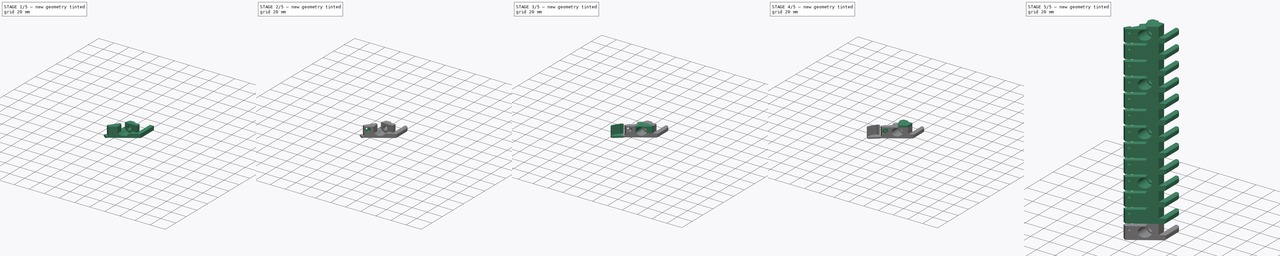
[diagram: build sequence overview — one tinted view per stage of 5, left to right]
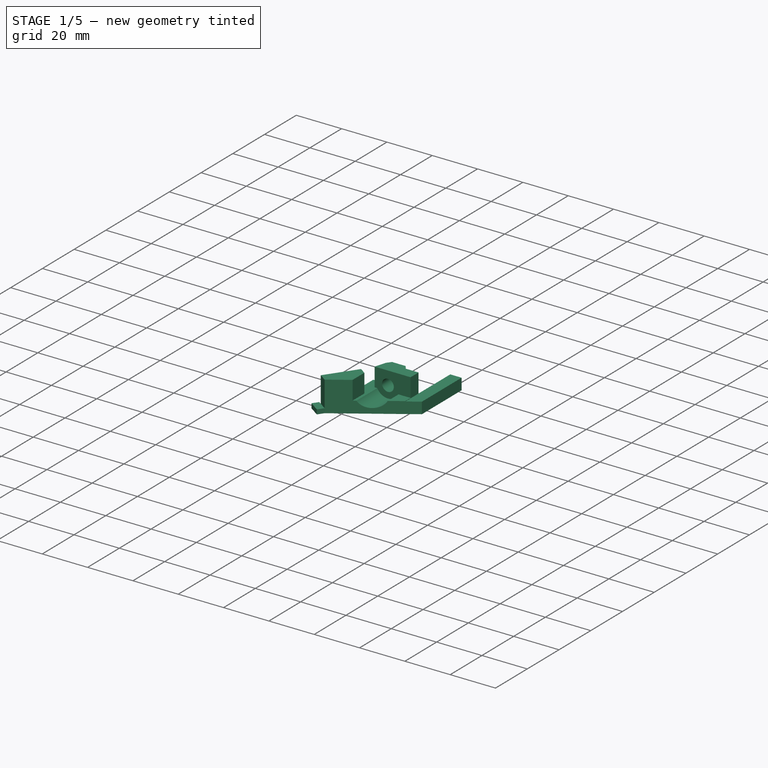
[diagram: stage 1 of 5 — iso view after this stage's code; geometry added in this stage tinted green]
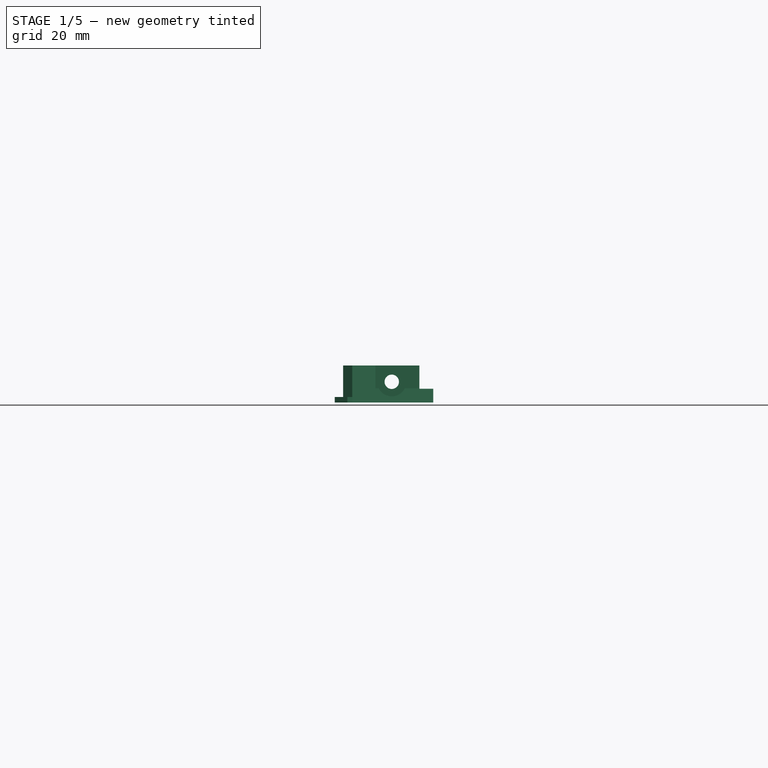
[diagram: stage 1 of 5 — front view after this stage's code; geometry added in this stage tinted green]
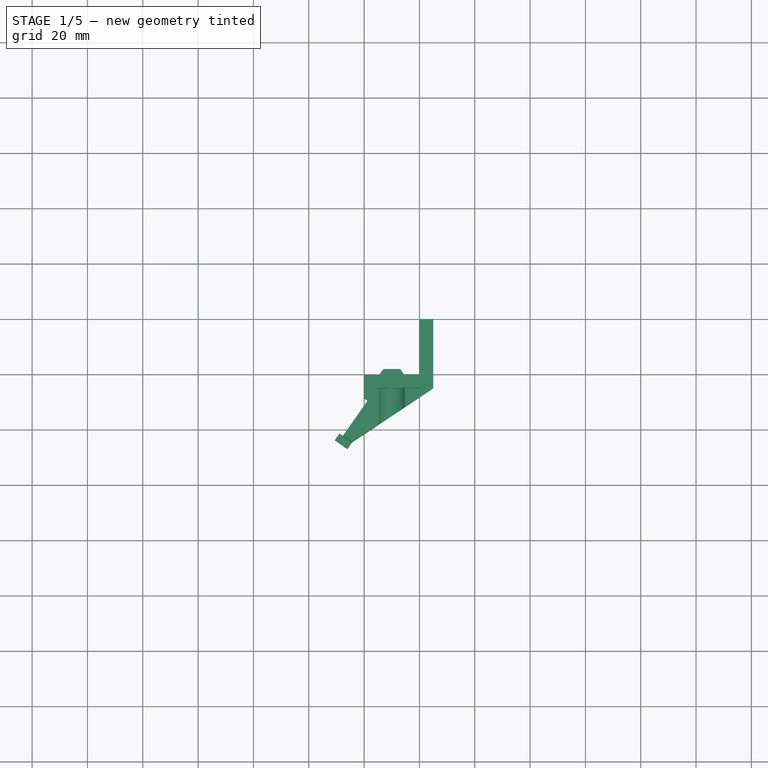
[diagram: stage 1 of 5 — top view after this stage's code; geometry added in this stage tinted green]
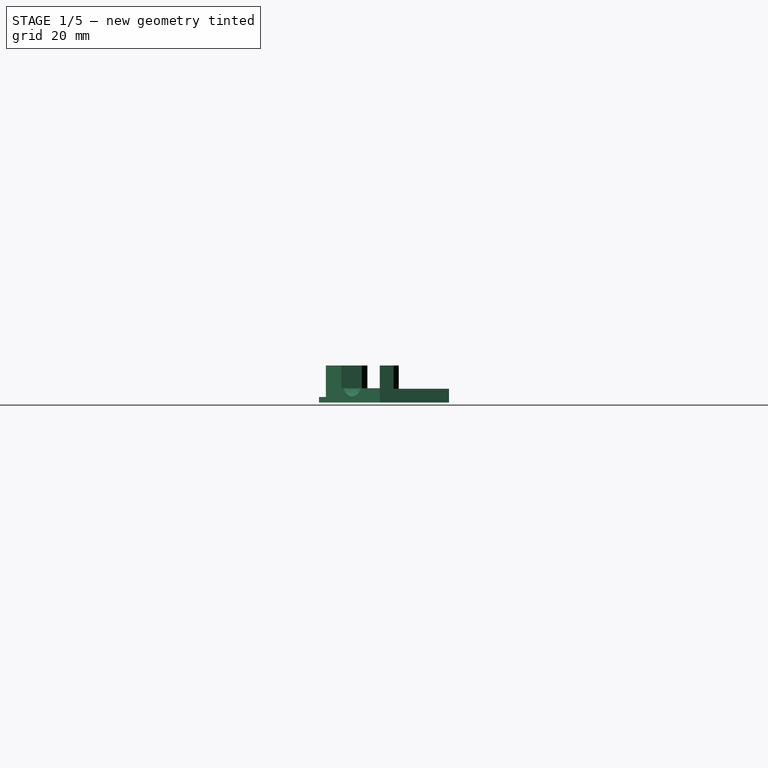
[diagram: stage 1 of 5 — right view after this stage's code; geometry added in this stage tinted green]
FCSTD DOCUMENT  (FreeCAD 0.21R33694 (Git))
Label: blade13
License: All rights reserved
LicenseURL: http://en.wikipedia.org/wiki/All_rights_reserved
objects: Sketcher::SketchObject×21, PartDesign::Pocket×16, PartDesign::Pad×15, PartDesign::Plane×5, PartDesign::Chamfer×5, PartDesign::Fillet×2, PartDesign::LinearPattern×1, PartDesign::Body×1
note: 104 computed .brp shape members not serialized (recipe doc carries the construction recipe); baked Part::Feature solids carry a one-line shape summary decoded from their .brp

FEATURE [Sketcher::SketchObject] Sketch
  FullyConstrained = true
  MapMode = 5
  Support = -> [XY_Plane]
  sketch-geometry (9):
    g0: LineSegment StartX=0 StartY=0 StartZ=0 EndX=0 EndY=20 EndZ=0
    g1: LineSegment StartX=0 StartY=20 StartZ=0 EndX=5 EndY=20 EndZ=0
    g2: LineSegment StartX=5 StartY=20 StartZ=0 EndX=5 EndY=-5 EndZ=0
    g3: LineSegment StartX=-20 StartY=0 StartZ=0 EndX=0 EndY=0 EndZ=0
    g4: LineSegment StartX=-24.3032 StartY=-24.4912 StartZ=0 EndX=5 EndY=-5 EndZ=0
    g5: LineSegment StartX=-18.6894 StartY=-9.5 StartZ=0 EndX=-27.5798 EndY=-22.1969 EndZ=0
    g6: LineSegment StartX=-18.6894 StartY=-9.5 StartZ=0 EndX=-20 EndY=-8.58228 EndZ=0
    g7: LineSegment StartX=-20 StartY=-8.58228 StartZ=0 EndX=-20 EndY=0 EndZ=0
    g8: LineSegment StartX=-27.5798 StartY=-22.1969 StartZ=0 EndX=-24.3032 EndY=-24.4912 EndZ=0
  constraints (26):
    c: Coincident(g-1,g0)
    c: PointOnObject(g0,g-2)
    c: Coincident(g0,g1)
    c: Horizontal(g1)
    c: Coincident(g1,g2)
    c: Vertical(g2)
    c: PointOnObject(g3,g-1)
    c: Coincident(g3,g0)
    c: DistanceY(g0,g0) = 20
    c: DistanceX(g1,g1) = 5
    c: DistanceY(g2,g0) = 5
    c: Coincident(g4,g2)
    c: Angle(g5,g3) = 2.18166
    c: DistanceY(g5,g3) = 9.5
    c: Coincident(g6,g7)
    c: Vertical(g7)
    c: Distance(g6) = 1.6
    c: Perpendicular(g6,g5)
    c: DistanceX(g7,g0) = 20
    c: Coincident(g5,g6)
    c: Coincident(g3,g7)
    c: Coincident(g5,g8)
    c: Perpendicular(g5,g8)
    c: Coincident(g8,g4)
    c: Distance(g8) = 4
    c: Distance(g5) = 15.5
FEATURE [PartDesign::Pad] Pad
  Direction = (1,1,1)
  Length = 13.4
  Length2 = 100
  Profile = -> Sketch
  Type = 0
FEATURE [Sketcher::SketchObject] Sketch002
  FullyConstrained = false
  MapMode = 5
  Placement = pos=(0,0,13.4) rot=(0,0,1;0rad)
  sketch-geometry (5):
    g0: LineSegment StartX=14.3141 StartY=-22.1452 StartZ=0 EndX=14.3141 EndY=26.8282 EndZ=0
    g1: LineSegment StartX=14.3141 StartY=26.8282 StartZ=0 EndX=0 EndY=26.8282 EndZ=0
    g2: LineSegment StartX=0 StartY=26.8282 StartZ=0 EndX=0 EndY=0 EndZ=0
    g3: LineSegment StartX=0 StartY=0 StartZ=0 EndX=0 EndY=-22.1452 EndZ=0
    g4: LineSegment StartX=0 StartY=-22.1452 StartZ=0 EndX=14.3141 EndY=-22.1452 EndZ=0
  constraints (11):
    c: Coincident(g0,g1)
    c: Coincident(g1,g2)
    c: Horizontal(g1)
    c: Vertical(g0)
    c: Vertical(g2)
    c: Coincident(g2,g3)
    c: PointOnObject(g3,g-2)
    c: Vertical(g3)
    c: Coincident(g3,g4)
    c: Coincident(g4,g0)
    c: Horizontal(g4)
FEATURE [PartDesign::Pocket] Pocket001
  BaseFeature = -> Pad
  Direction = (0,0,-1)
  Length = 8.4
  Length2 = 0
  Profile = -> Sketch002
  ReferenceAxis = -> Sketch002 [N_Axis]
  Type = 4
FEATURE [Sketcher::SketchObject] Sketch003
  FullyConstrained = true
  MapMode = 5
  Placement = pos=(0,0,0) rot=(1,0,0;1.5708rad)
  Support = -> [XZ_Plane]
  sketch-geometry (1):
    g0: Circle CenterX=-10 CenterY=7.5 CenterZ=0 NormalX=0 NormalY=0 NormalZ=1 AngleXU=0 Radius=2.6
  constraints (3):
    c: Diameter(g0) = 5.2
    c: DistanceX(g0,g-1) = 10
    c: DistanceY(g-1,g0) = 7.5
FEATURE [PartDesign::Pocket] Pocket002
  BaseFeature = -> Pocket001
  Direction = (0,1,2e-16)
  Length = 5
  Length2 = 100
  Profile = -> Sketch003
  Reversed = true
  Type = 1
FEATURE [PartDesign::Plane] DatumPlane
  AttachmentOffset = pos=(0,0,-30) rot=(0,0,1;0rad)
  Length = 74.5929
  MapMode = 5
  Placement = pos=(0,-30,6.7e-15) rot=(0,0.707107,0.707107;3.14159rad)
  ResizeMode = 0
  Support = -> [Pocket002]
  Width = 252.413
FEATURE [Sketcher::SketchObject] Sketch004
  FullyConstrained = true
  MapMode = 5
  Placement = pos=(0,-30,6.7e-15) rot=(0,0.707107,0.707107;3.14159rad)
  Support = -> [DatumPlane]
  sketch-geometry (1):
    g0: Circle CenterX=10 CenterY=7.5 CenterZ=0 NormalX=0 NormalY=0 NormalZ=1 AngleXU=0 Radius=5.25
  constraints (3):
    c: Diameter(g0) = 10.5
    c: DistanceY(g-1,g0) = 7.5
    c: DistanceX(g-1,g0) = 10
FEATURE [PartDesign::Pocket] Pocket
  BaseFeature = -> Pocket002
  Direction = (0,-1,2e-16)
  Length = 25
  Length2 = 100
  Profile = -> Sketch004
  Reversed = true
  Type = 0
FEATURE [PartDesign::Plane] DatumPlane001
  Length = 96.717
  MapMode = 5
  Placement = pos=(-8.07721,5.65572,0) rot=(-0.345437,0.663579,0.663579;3.8068rad)
  ResizeMode = 0
  Support = -> [Pocket]
  Width = 256.001
FEATURE [Sketcher::SketchObject] Sketch007
  FullyConstrained = true
  MapMode = 5
  Placement = pos=(-8.07721,5.65572,0) rot=(-0.345437,0.663579,0.663579;3.8068rad)
  Support = -> [DatumPlane001]
  sketch-geometry (4):
    g0: LineSegment StartX=37 StartY=0 StartZ=0 EndX=34 EndY=0 EndZ=0
    g1: LineSegment StartX=34 StartY=0 StartZ=0 EndX=34 EndY=2 EndZ=0
    g2: LineSegment StartX=34 StartY=2 StartZ=0 EndX=37 EndY=2 EndZ=0
    g3: LineSegment StartX=37 StartY=2 StartZ=0 EndX=37 EndY=0 EndZ=0
  constraints (12):
    c: Coincident(g0,g1)
    c: Coincident(g1,g2)
    c: Coincident(g2,g3)
    c: Coincident(g3,g0)
    c: Horizontal(g0)
    c: Horizontal(g2)
    c: Vertical(g1)
    c: Vertical(g3)
    c: PointOnObject(g0,g-1)
    c: DistanceX(g2,g2) = 3
    c: DistanceX(g-1,g0) = 37
    c: DistanceY(g1,g1) = 2
FEATURE [PartDesign::Pad] Pad001
  BaseFeature = -> Pocket
  Direction = (-0.819152,0.573576,1e-16)
  Length = 1.6
  Length2 = 4
  Profile = -> Sketch007
  Type = 4
FEATURE [PartDesign::Plane] DatumPlane002
  Length = 62.8345
  MapMode = 5
  Placement = pos=(0,0,13.4) rot=(0,0,1;0rad)
  ResizeMode = 0
  Support = -> [Pad001]
  Width = 60.2547
FEATURE [Sketcher::SketchObject] Sketch008
  FullyConstrained = false
  MapMode = 5
  Placement = pos=(0,0,13.4) rot=(0,0,1;0rad)
  Support = -> [DatumPlane002]
  sketch-geometry (10):
    g0: LineSegment StartX=-15.88 StartY=-5 StartZ=0 EndX=-14.38 EndY=-1e-16 EndZ=0
    g1: LineSegment StartX=-14.38 StartY=-1e-16 StartZ=0 EndX=-20 EndY=0 EndZ=0
    g2: LineSegment StartX=0 StartY=-10 StartZ=0 EndX=0 EndY=-25 EndZ=0
    g3: LineSegment StartX=-20 StartY=0 StartZ=0 EndX=-20 EndY=-8.59 EndZ=0
    g4: LineSegment StartX=-3.69055 StartY=-25 StartZ=0 EndX=0 EndY=-25 EndZ=0
    g5: LineSegment StartX=-15.88 StartY=-5 StartZ=0 EndX=0 EndY=-5 EndZ=0
    g6: LineSegment StartX=0 StartY=-5 StartZ=0 EndX=0 EndY=-10 EndZ=0
    g7: LineSegment StartX=-15.88 StartY=-11.4749 StartZ=0 EndX=-15.88 EndY=-25 EndZ=0
    g8: LineSegment StartX=-3.69055 StartY=-25 StartZ=0 EndX=-15.88 EndY=-25 EndZ=0
    g9: LineSegment StartX=-15.88 StartY=-11.4749 StartZ=0 EndX=-20 EndY=-8.59 EndZ=0
  constraints (29):
    c: PointOnObject(g1,g-1)
    c: PointOnObject(g0,g-1)
    c: Coincident(g0,g1)
    c: DistanceY(g0,g1) = 5
    c: DistanceX(g0,g0) = 1.5
    c: Vertical(g2)
    c: DistanceY(g2,g-1) = 25
    c: PointOnObject(g2,g-2)
    c: DistanceY(g2,g-1) = 10
    c: DistanceX(g0,g-1) = 14.38
    c: Coincident(g1,g3)
    c: Vertical(g3)
    c: Coincident(g4,g2)
    c: Horizontal(g4)
    c: Coincident(g0,g5)
    c: PointOnObject(g5,g-2)
    c: Horizontal(g5)
    c: Coincident(g5,g6)
    c: Coincident(g2,g6)
    c: DistanceX(g1,g-1) = 20
    c: DistanceY(g3,g1) = 8.59
    c: Vertical(g7)
    c: Coincident(g8,g7)
    c: Horizontal(g8)
    c: PointOnObject(g0,g7)
    c: Coincident(g9,g7)
    c: Coincident(g9,g3)
    c: Angle(g9,g3) = 2.18166
    c: Coincident(g8,g4)
FEATURE [PartDesign::Pocket] Pocket005
  BaseFeature = -> Pad001
  Direction = (0,0,-1)
  Length = 8.25
  Length2 = 100
  Profile = -> Sketch008
  Type = 0
FEATURE [Sketcher::SketchObject] Sketch009
  FullyConstrained = true
  MapMode = 5
  Support = -> [XY_Plane]
  sketch-geometry (5):
    g0: LineSegment StartX=-14.375 StartY=0 StartZ=0 EndX=-13 EndY=1.85 EndZ=0
    g1: LineSegment StartX=-13 StartY=1.85 StartZ=0 EndX=-7 EndY=1.85 EndZ=0
    g2: LineSegment StartX=-7 StartY=1.85 StartZ=0 EndX=-5.625 EndY=0 EndZ=0
    g3: LineSegment StartX=-5.625 StartY=0 StartZ=0 EndX=-14.375 EndY=0 EndZ=0
    g4: LineSegment StartX=-10 StartY=1.85 StartZ=0 EndX=-10 EndY=0 EndZ=0
  constraints (14):
    c: PointOnObject(g0,g-1)
    c: Coincident(g0,g1)
    c: Horizontal(g1)
    c: Coincident(g1,g2)
    c: PointOnObject(g2,g-1)
    c: Coincident(g2,g3)
    c: Coincident(g3,g0)
    c: DistanceX(g0,g2) = 8.75
    c: DistanceX(g1,g1) = 6
    c: DistanceY(g-1,g1) = 1.85
    c: Vertical(g4)
    c: Symmetric(g0,g1,g4)
    c: Symmetric(g0,g2,g4)
    c: DistanceX(g4,g-1) = 10
FEATURE [PartDesign::Pad] Pad002
  BaseFeature = -> Pocket005
  Direction = (0,0,1)
  Length = 13.4
  Length2 = 100
  Profile = -> Sketch009
  Type = 0
FEATURE [PartDesign::Pocket] Pocket006
  BaseFeature = -> Pad002
  Direction = (0,1,2e-16)
  Length = 5
  Length2 = 100
  Profile = -> Sketch003
  Type = 0
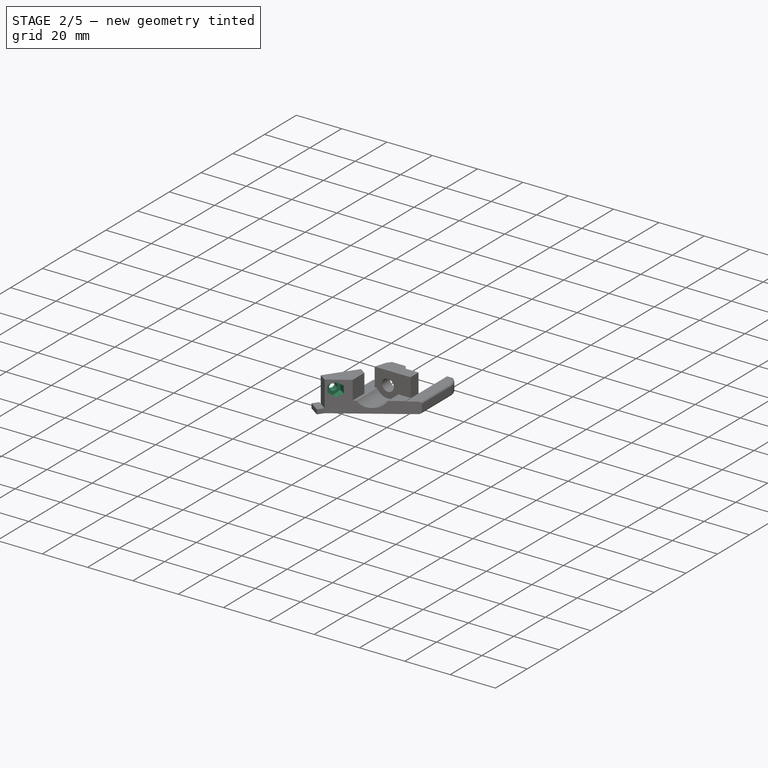
[diagram: stage 2 of 5 — iso view after this stage's code; geometry added in this stage tinted green]
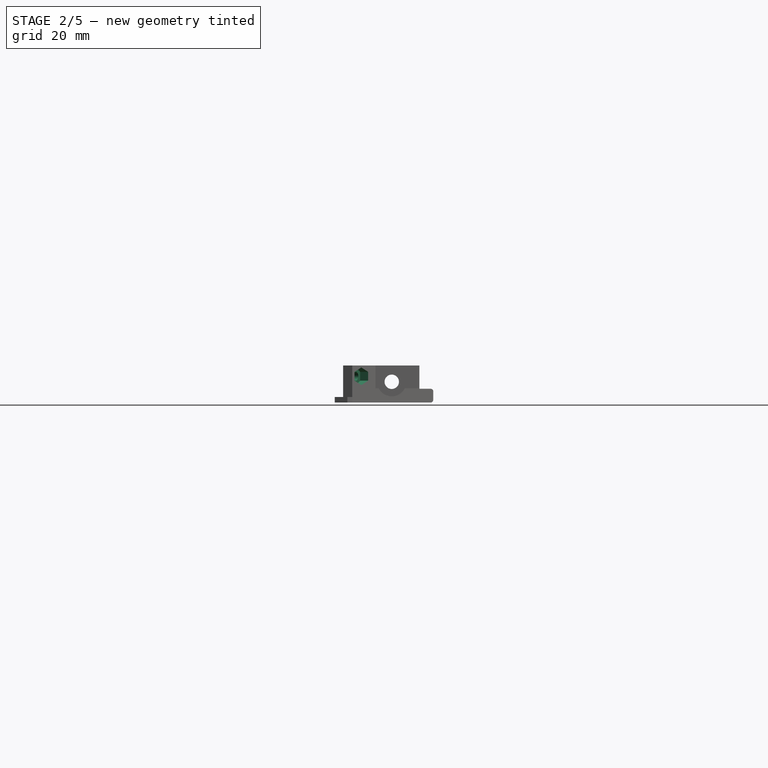
[diagram: stage 2 of 5 — front view after this stage's code; geometry added in this stage tinted green]
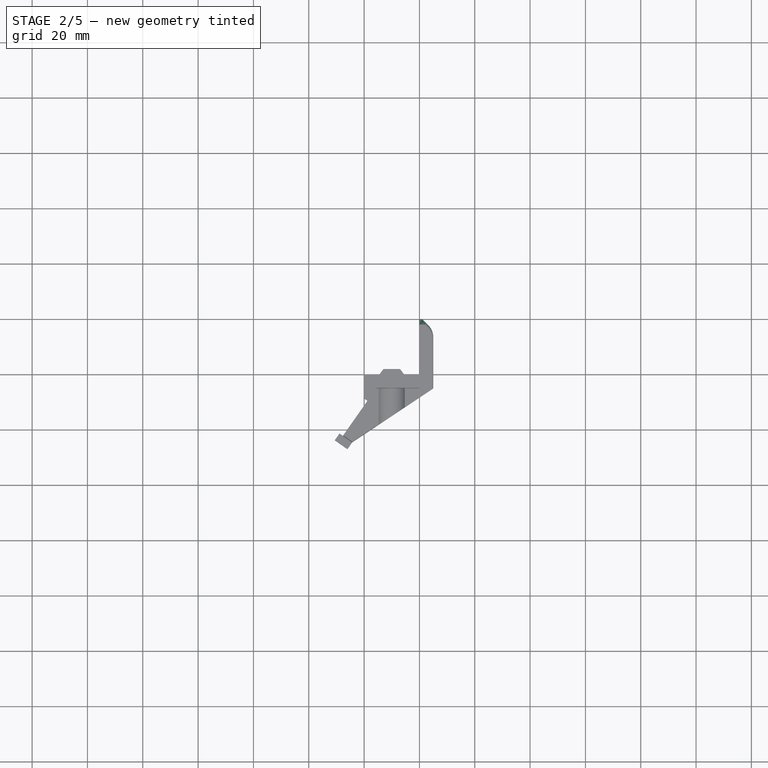
[diagram: stage 2 of 5 — top view after this stage's code; geometry added in this stage tinted green]
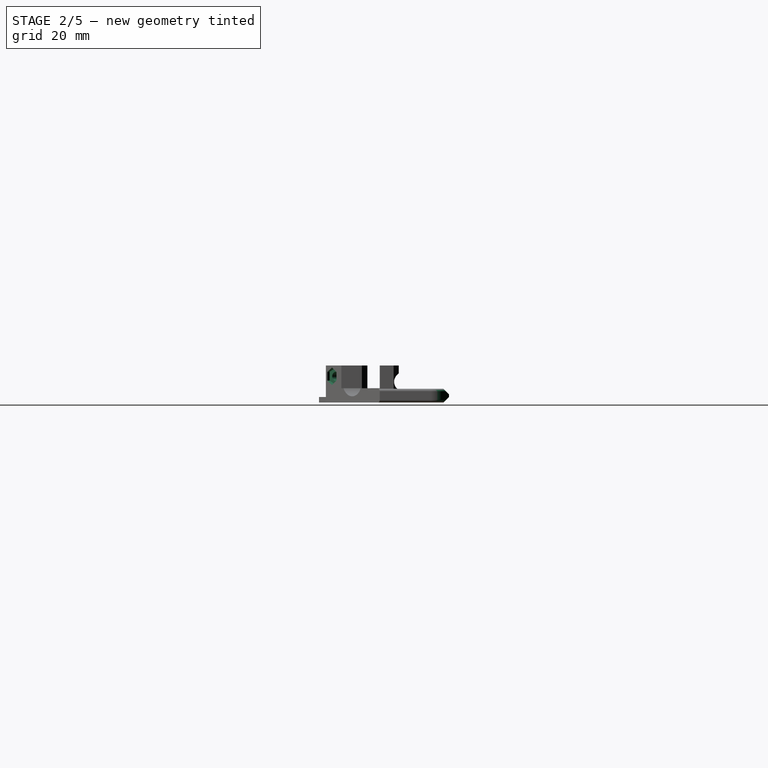
[diagram: stage 2 of 5 — right view after this stage's code; geometry added in this stage tinted green]
FEATURE [Sketcher::SketchObject] Sketch010
  FullyConstrained = true
  MapMode = 5
  Placement = pos=(0,0,0) rot=(1,0,0;1.5708rad)
  Support = -> [XZ_Plane]
  sketch-geometry (1):
    g0: Circle CenterX=-10 CenterY=7.5 CenterZ=0 NormalX=0 NormalY=0 NormalZ=1 AngleXU=0 Radius=4.25
  constraints (3):
    c: DistanceX(g0,g-1) = 10
    c: DistanceY(g-1,g0) = 7.5
    c: Diameter(g0) = 8.5
FEATURE [PartDesign::Pocket] Pocket007
  BaseFeature = -> Pocket006
  Direction = (0,1,2e-16)
  Length = 5
  Length2 = 100
  Profile = -> Sketch010
  Type = 0
FEATURE [PartDesign::Plane] DatumPlane003
  AttachmentOffset = pos=(0,0,-9) rot=(0,0,1;0rad)
  Length = 96.717
  MapMode = 5
  Placement = pos=(-0.704838,0.493533,-1e-15) rot=(-0.345437,0.663579,0.663579;3.8068rad)
  ResizeMode = 0
  Width = 256.001
FEATURE [Sketcher::SketchObject] Sketch011
  FullyConstrained = true
  MapMode = 5
  Placement = pos=(-0.704838,0.493533,-1e-15) rot=(-0.345437,0.663579,0.663579;3.8068rad)
  Support = -> [DatumPlane003]
  sketch-geometry (1):
    g0: Circle CenterX=30.3 CenterY=9.5 CenterZ=0 NormalX=0 NormalY=0 NormalZ=1 AngleXU=0 Radius=1.6
  constraints (3):
    c: Diameter(g0) = 3.2
    c: DistanceY(g-1,g0) = 9.5
    c: DistanceX(g-1,g0) = 30.3
FEATURE [Sketcher::SketchObject] Sketch012
  FullyConstrained = true
  MapMode = 5
  Placement = pos=(-0.704838,0.493533,-1e-15) rot=(-0.345437,0.663579,0.663579;3.8068rad)
  Support = -> [DatumPlane003]
  sketch-geometry (7):
    g0: LineSegment StartX=33.05 StartY=7.91229 StartZ=0 EndX=33.05 EndY=11.0877 EndZ=0
    g1: LineSegment StartX=33.05 StartY=11.0877 StartZ=0 EndX=30.3 EndY=12.6754 EndZ=0
    g2: LineSegment StartX=30.3 StartY=12.6754 StartZ=0 EndX=27.55 EndY=11.0877 EndZ=0
    g3: LineSegment StartX=27.55 StartY=11.0877 StartZ=0 EndX=27.55 EndY=7.91229 EndZ=0
    g4: LineSegment StartX=27.55 StartY=7.91229 StartZ=0 EndX=30.3 EndY=6.32457 EndZ=0
    g5: LineSegment StartX=30.3 StartY=6.32457 StartZ=0 EndX=33.05 EndY=7.91229 EndZ=0
    g6: Circle CenterX=30.3 CenterY=9.5 CenterZ=0 NormalX=0 NormalY=0 NormalZ=1 AngleXU=0 Radius=3.17543
  constraints (17):
    c: Coincident(g0,g1)
    c: Coincident(g1,g2)
    c: Coincident(g2,g3)
    c: Coincident(g3,g4)
    c: Coincident(g4,g5)
    c: Coincident(g5,g0)
    c: Equal(g0, g1-g5) x5
    c: PointOnObject(g0,g6)
    c: PointOnObject(g1,g6)
    c: PointOnObject(g2,g6)
    c: PointOnObject(g3,g6)
    c: PointOnObject(g4,g6)
    c: PointOnObject(g5,g6)
    c: Vertical(g3)
    c: DistanceX(g2,g0) = 5.5
    c: DistanceX(g-1,g6) = 30.3
    c: DistanceY(g-1,g6) = 9.5
FEATURE [PartDesign::Chamfer] Chamfer
  Angle = 45
  Base = -> Pocket007 [Edge43]
  BaseFeature = -> Pocket007
  ChamferType = 0
  FlipDirection = false
  Size = 4
  Size2 = 1
  SupportTransform = false
  UseAllEdges = false
FEATURE [PartDesign::Chamfer] Chamfer001
  Angle = 45
  Base = -> Chamfer [Edge29,Edge4]
  BaseFeature = -> Chamfer
  ChamferType = 0
  FlipDirection = false
  Size = 2
  Size2 = 1
  SupportTransform = false
  UseAllEdges = false
FEATURE [PartDesign::Fillet] Fillet
  Base = -> Chamfer001 [Edge15]
  BaseFeature = -> Chamfer001
  Radius = 6
  SupportTransform = false
  UseAllEdges = false
FEATURE [PartDesign::Pocket] Pocket008
  BaseFeature = -> Fillet
  Direction = (0.819152,-0.573576,-1.3e-15)
  Length = 16
  Length2 = 100
  Profile = -> Sketch011
  Reversed = true
  Type = 0
FEATURE [PartDesign::Pocket] Pocket009
  BaseFeature = -> Pocket008
  Direction = (0.819152,-0.573576,-1.3e-15)
  Length = 6
  Length2 = 100
  Profile = -> Sketch012
  Reversed = true
  Type = 0
FEATURE [PartDesign::Plane] DatumPlane004
  Length = 96.717
  MapMode = 5
  Placement = pos=(-8.07721,5.65572,0) rot=(-0.345437,0.663579,0.663579;3.8068rad)
  ResizeMode = 0
  Support = -> [Pocket009]
  Width = 256.001
FEATURE [Sketcher::SketchObject] Sketch013
  FullyConstrained = true
  MapMode = 5
  Placement = pos=(-8.07721,5.65572,0) rot=(-0.345437,0.663579,0.663579;3.8068rad)
  Support = -> [DatumPlane004]
  sketch-geometry (4):
    g0: LineSegment StartX=19.5 StartY=5 StartZ=0 EndX=27.5 EndY=5 EndZ=0
    g1: LineSegment StartX=27.5 StartY=5 StartZ=0 EndX=27.5 EndY=12 EndZ=0
    g2: LineSegment StartX=27.5 StartY=12 StartZ=0 EndX=19.5 EndY=12 EndZ=0
    g3: LineSegment StartX=19.5 StartY=12 StartZ=0 EndX=19.5 EndY=5 EndZ=0
  constraints (12):
    c: Coincident(g0,g1)
    c: Coincident(g1,g2)
    c: Coincident(g2,g3)
    c: Coincident(g3,g0)
    c: Horizontal(g0)
    c: Horizontal(g2)
    c: Vertical(g1)
    c: Vertical(g3)
    c: DistanceX(g-1,g0) = 19.5
    c: DistanceX(g0,g0) = 8
    c: DistanceY(g-1,g0) = 5
    c: DistanceY(g3,g3) = 7
FEATURE [PartDesign::Pocket] Pocket010
  BaseFeature = -> Pocket009
  Direction = (0.819152,-0.573576,-1e-16)
  Length = 2
  Length2 = 100
  Profile = -> Sketch013
  Type = 0
FEATURE [PartDesign::Fillet] Fillet001
  Base = -> Pocket010 [Edge21,Edge2]
  BaseFeature = -> Pocket010
  Radius = 1
  SupportTransform = false
  UseAllEdges = false
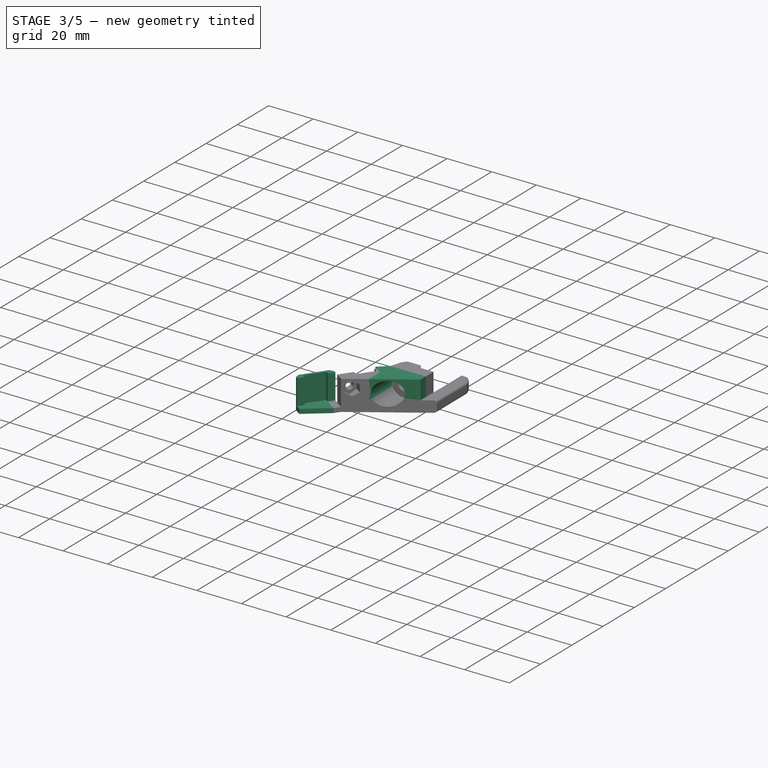
[diagram: stage 3 of 5 — iso view after this stage's code; geometry added in this stage tinted green]
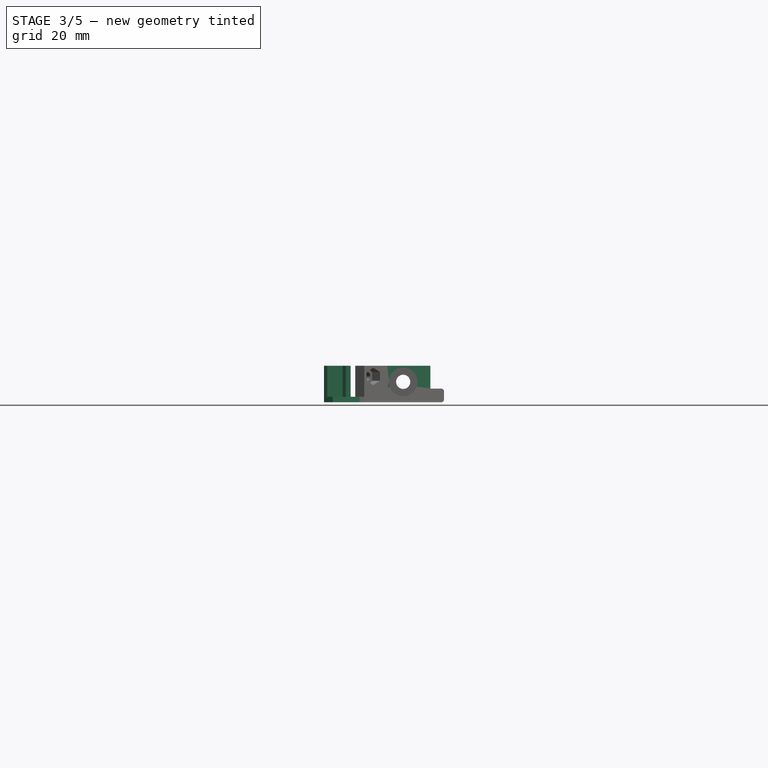
[diagram: stage 3 of 5 — front view after this stage's code; geometry added in this stage tinted green]
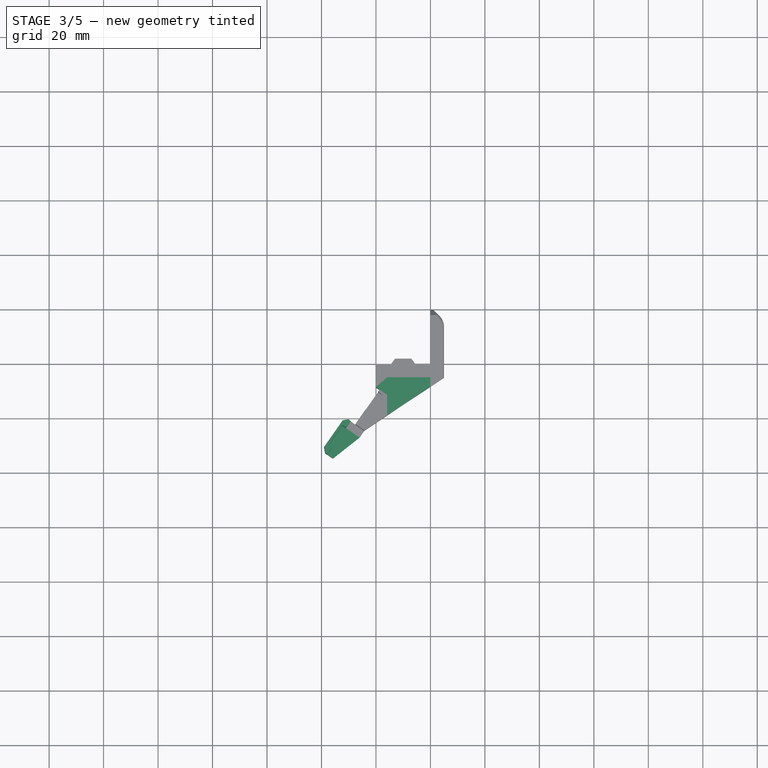
[diagram: stage 3 of 5 — top view after this stage's code; geometry added in this stage tinted green]
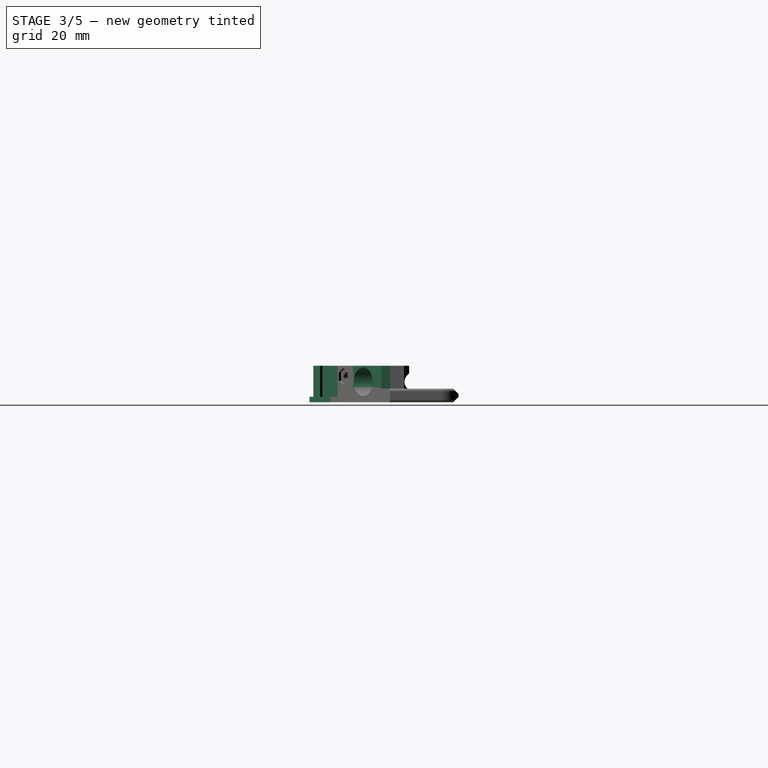
[diagram: stage 3 of 5 — right view after this stage's code; geometry added in this stage tinted green]
FEATURE [PartDesign::Pad] Pad003
  BaseFeature = -> Fillet001
  Direction = (0,-1,0)
  Length = 14
  Length2 = 100
  Profile = -> Fillet001 [Face52]
  Type = 0
FEATURE [Sketcher::SketchObject] Sketch014
  ExternalGeometry = -> [Pad003]
  FullyConstrained = true
  MapMode = 5
  Placement = pos=(0,0,5.15) rot=(0,0,1;0rad)
  Support = -> [Pad003]
  sketch-geometry (3):
    g0: LineSegment StartX=-15.88 StartY=-5 StartZ=0 EndX=-20 EndY=-8.58228 EndZ=0
    g1: LineSegment StartX=-20 StartY=-8.58228 StartZ=0 EndX=-15.88 EndY=-11.4749 EndZ=0
    g2: LineSegment StartX=-15.88 StartY=-11.4749 StartZ=0 EndX=-15.88 EndY=-5 EndZ=0
  constraints (6):
    c: Coincident(g0,g1)
    c: Coincident(g1,g2)
    c: Coincident(g2,g0)
    c: Coincident(g0,g-3)
    c: Coincident(g0,g-4)
    c: Coincident(g1,g-3)
FEATURE [PartDesign::Pad] Pad004
  BaseFeature = -> Pad003
  Direction = (0,0,1)
  Length = 8.25
  Length2 = 100
  Profile = -> Sketch014
  Type = 0
FEATURE [Sketcher::SketchObject] Sketch015
  ExternalGeometry = -> [Pad004]
  FullyConstrained = false
  MapMode = 5
  Support = -> [XY_Plane]
  sketch-geometry (4):
    g0: LineSegment StartX=-15.88 StartY=-18.8884 StartZ=0 EndX=-17.1497 EndY=-23.147 EndZ=0
    g1: LineSegment StartX=-17.1497 StartY=-23.147 StartZ=0 EndX=5.03661 EndY=-23.147 EndZ=0
    g2: LineSegment StartX=5.03661 StartY=-23.147 StartZ=0 EndX=-4e-16 EndY=-8.32578 EndZ=0
    g3: LineSegment StartX=-4e-16 StartY=-8.32578 StartZ=0 EndX=-15.88 EndY=-18.8884 EndZ=0
  constraints (7):
    c: Coincident(g-3,g0)
    c: Coincident(g0,g1)
    c: Horizontal(g1)
    c: Coincident(g1,g2)
    c: Coincident(g2,g3)
    c: Coincident(g3,g0)
    c: Coincident(g-4,g2)
FEATURE [PartDesign::Pocket] Pocket011
  BaseFeature = -> Pad004
  Direction = (0,0,-1)
  Length = 15
  Length2 = 100
  Profile = -> Sketch015
  Reversed = true
  Type = 0
FEATURE [Sketcher::SketchObject] Sketch016
  ExternalGeometry = -> [Pocket011]
  FullyConstrained = true
  MapMode = 5
  Support = -> [XY_Plane]
  sketch-geometry (6):
    g0: LineSegment StartX=-31.3469 StartY=-19.557 StartZ=0 EndX=-39.9506 EndY=-31.8443 EndZ=0
    g1: LineSegment StartX=-39.9506 StartY=-31.8443 StartZ=0 EndX=-35.8548 EndY=-34.7122 EndZ=0
    g2: LineSegment StartX=-35.8548 StartY=-34.7122 StartZ=0 EndX=-26.0229 EndY=-26.9472 EndZ=0
    g3: LineSegment StartX=-26.0229 StartY=-26.9472 StartZ=0 EndX=-30.6102 EndY=-23.7352 EndZ=0
    g4: LineSegment StartX=-30.6102 StartY=-23.7352 StartZ=0 EndX=-28.8894 EndY=-21.2777 EndZ=0
    g5: LineSegment StartX=-28.8894 StartY=-21.2777 StartZ=0 EndX=-31.3469 EndY=-19.557 EndZ=0
  constraints (15):
    c: Coincident(g0,g1)
    c: Coincident(g1,g2)
    c: Parallel(g-4,g0)
    c: Perpendicular(g0,g1)
    c: Coincident(g2,g-5)
    c: Distance(g-5,g0) = 3
    c: Distance(g1) = 5
    c: Distance(g0,g-5) = 12
    c: Coincident(g2,g3)
    c: Coincident(g3,g-5)
    c: Coincident(g3,g4)
    c: Coincident(g4,g-4)
    c: Coincident(g4,g5)
    c: Coincident(g5,g0)
    c: Perpendicular(g0,g5)
FEATURE [PartDesign::Pad] Pad005
  BaseFeature = -> Pocket011
  Direction = (0,0,1)
  Length = 2
  Length2 = 100
  Profile = -> Sketch016
  Type = 0
FEATURE [Sketcher::SketchObject] Sketch017
  ExternalGeometry = -> [Pad005]
  FullyConstrained = true
  MapMode = 5
  Support = -> [XY_Plane]
  sketch-geometry (8):
    g0: LineSegment StartX=-29.299 StartY=-20.9909 StartZ=0 EndX=-31.3469 EndY=-19.557 EndZ=0
    g1: LineSegment StartX=-31.3469 StartY=-19.557 StartZ=0 EndX=-39.9506 EndY=-31.8443 EndZ=0
    g2: LineSegment StartX=-39.9506 StartY=-31.8443 StartZ=0 EndX=-37.9027 EndY=-33.2782 EndZ=0
    g3: LineSegment StartX=-37.9027 StartY=-33.2782 StartZ=0 EndX=-36.1819 EndY=-30.8208 EndZ=0
    g4: LineSegment StartX=-36.1819 StartY=-30.8208 StartZ=0 EndX=-37.4107 EndY=-29.9604 EndZ=0
    g5: LineSegment StartX=-37.4107 StartY=-29.9604 StartZ=0 EndX=-32.2485 EndY=-22.588 EndZ=0
    g6: LineSegment StartX=-32.2485 StartY=-22.588 StartZ=0 EndX=-31.0198 EndY=-23.4484 EndZ=0
    g7: LineSegment StartX=-31.0198 StartY=-23.4484 StartZ=0 EndX=-29.299 EndY=-20.9909 EndZ=0
  constraints (22):
    c: Coincident(g0,g-4)
    c: Coincident(g0,g1)
    c: Coincident(g1,g-4)
    c: Coincident(g1,g2)
    c: Coincident(g2,g3)
    c: Coincident(g3,g4)
    c: Coincident(g4,g5)
    c: Coincident(g5,g6)
    c: Coincident(g6,g7)
    c: Coincident(g7,g0)
    c: Perpendicular(g1,g2)
    c: Perpendicular(g0,g7)
    c: Perpendicular(g7,g6)
    c: Perpendicular(g6,g5)
    c: Perpendicular(g3,g4)
    c: Distance(g7) = 3
    c: Distance(g3) = 3
    c: Perpendicular(g3,g2)
    c: PointOnObject(g3,g7)
    c: Parallel(g0,g-3)
    c: Distance(g0) = 2.5
    c: Distance(g0,g5) = 1
FEATURE [PartDesign::Pad] Pad006
  BaseFeature = -> Pad005
  Direction = (0,0,1)
  Length = 13.4
  Length2 = 100
  Profile = -> Sketch017
  Type = 0
FEATURE [PartDesign::Pocket] Pocket012
  BaseFeature = -> Pad006
  Direction = (0,-1e-16,1)
  Length = 1.5
  Length2 = 100
  Profile = -> Pad006 [Face50]
  Type = 0
FEATURE [PartDesign::Chamfer] Chamfer002
  Angle = 45
  Base = -> Pocket012 [Edge229,Edge225]
  BaseFeature = -> Pocket012
  ChamferType = 0
  FlipDirection = false
  Size = 1.5
  Size2 = 1
  SupportTransform = false
  UseAllEdges = false
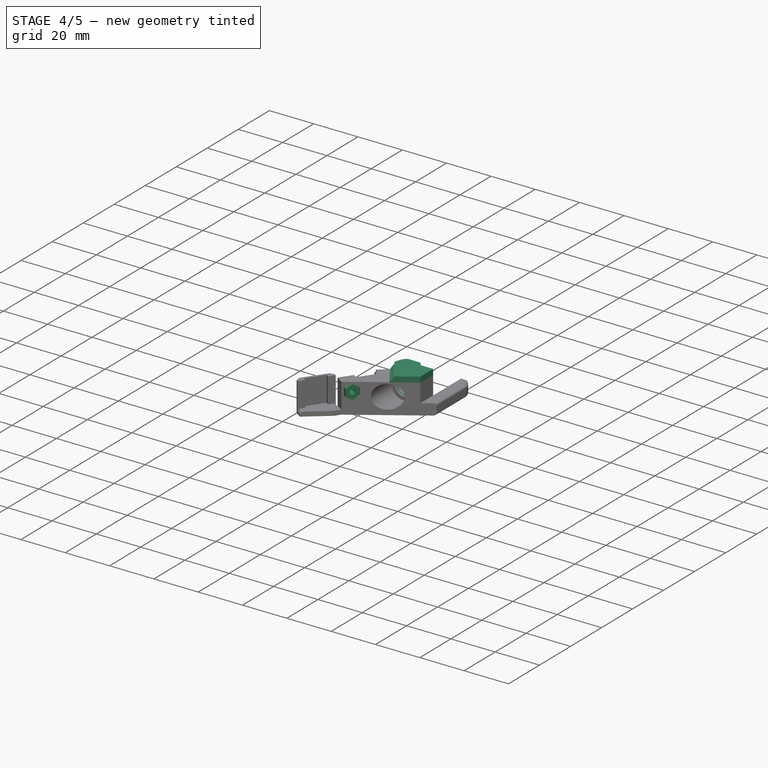
[diagram: stage 4 of 5 — iso view after this stage's code; geometry added in this stage tinted green]
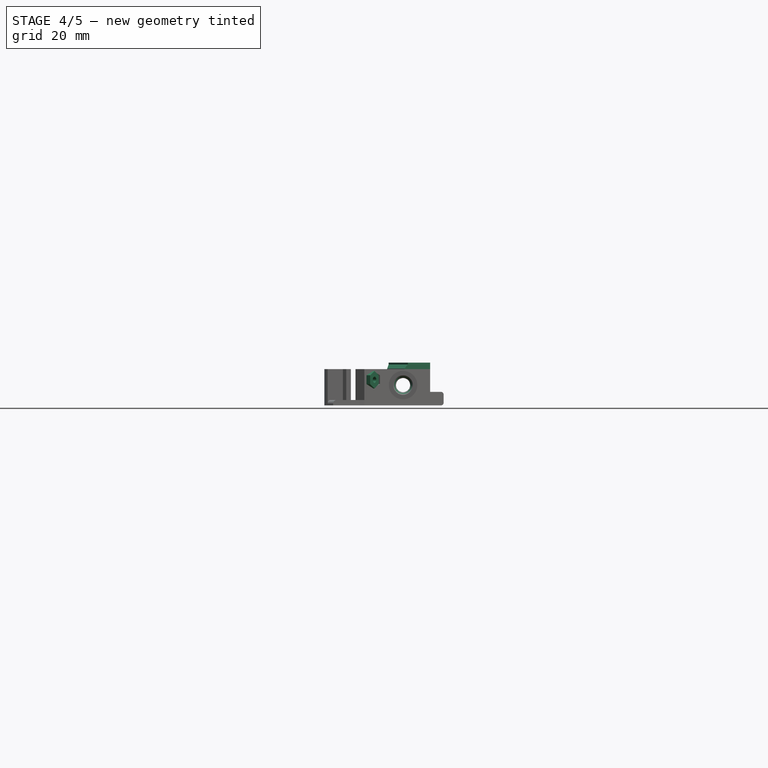
[diagram: stage 4 of 5 — front view after this stage's code; geometry added in this stage tinted green]
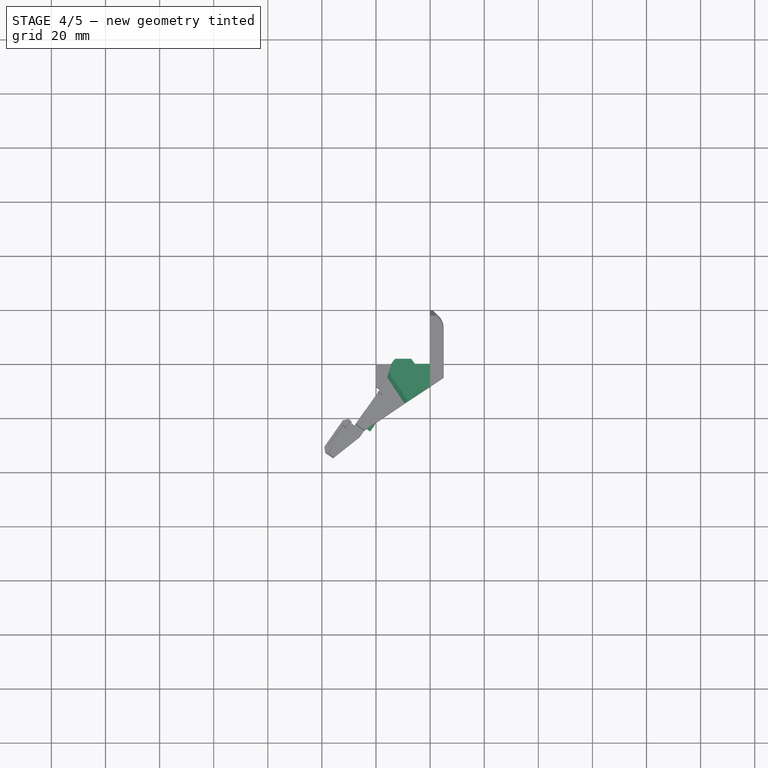
[diagram: stage 4 of 5 — top view after this stage's code; geometry added in this stage tinted green]
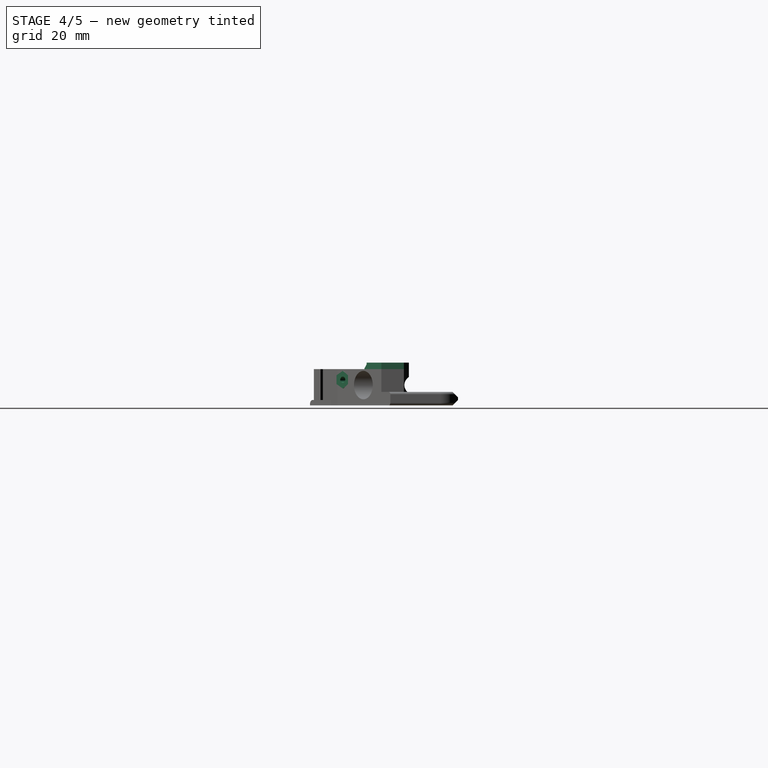
[diagram: stage 4 of 5 — right view after this stage's code; geometry added in this stage tinted green]
FEATURE [Sketcher::SketchObject] Sketch018
  FullyConstrained = false
  MapMode = 5
  Placement = pos=(-8.07721,5.65572,0) rot=(-0.345437,0.663579,0.663579;3.8068rad)
  Support = -> [DatumPlane001]
  sketch-geometry (8):
    g0: Circle CenterX=30.3 CenterY=9.5 CenterZ=0 NormalX=0 NormalY=0 NormalZ=1 AngleXU=0 Radius=1.125
    g1: LineSegment StartX=27.4854 StartY=7.875 StartZ=0 EndX=30.3 EndY=6.25 EndZ=0
    g2: LineSegment StartX=30.3 StartY=6.25 StartZ=0 EndX=33.1146 EndY=7.875 EndZ=0
    g3: LineSegment StartX=33.1146 StartY=7.875 StartZ=0 EndX=33.1146 EndY=11.125 EndZ=0
    g4: LineSegment StartX=33.1146 StartY=11.125 StartZ=0 EndX=30.3 EndY=12.75 EndZ=0
    g5: LineSegment StartX=30.3 StartY=12.75 StartZ=0 EndX=27.4854 EndY=11.125 EndZ=0
    g6: LineSegment StartX=27.4854 StartY=11.125 StartZ=0 EndX=27.4854 EndY=7.875 EndZ=0
    g7: Circle CenterX=30.3 CenterY=9.5 CenterZ=0 NormalX=0 NormalY=0 NormalZ=1 AngleXU=0 Radius=3.25
  constraints (17):
    c: Diameter(g0) = 2.25
    c: Coincident(g1,g2)
    c: Coincident(g2,g3)
    c: Coincident(g3,g4)
    c: Coincident(g4,g5)
    c: Coincident(g5,g6)
    c: Coincident(g6,g1)
    c: Equal(g1, g2-g6) x5
    c: PointOnObject(g1,g7)
    c: PointOnObject(g2,g7)
    c: PointOnObject(g3,g7)
    c: PointOnObject(g4,g7)
    c: PointOnObject(g5,g7)
    c: PointOnObject(g6,g7)
    c: Coincident(g7,g0)
    c: Vertical(g3)
    c: Diameter(g7) = 6.5
FEATURE [PartDesign::Pad] Pad007
  BaseFeature = -> Chamfer002
  Direction = (-0.819152,0.573576,1e-16)
  Length = 6
  Length2 = 100
  Profile = -> Sketch018
  Reversed = true
  Type = 0
FEATURE [Sketcher::SketchObject] Sketch019
  ExternalGeometry = -> [Pad007]
  FullyConstrained = true
  MapMode = 5
  Support = -> [XY_Plane]
  sketch-geometry (4):
    g0: LineSegment StartX=-18.4026 StartY=-9.09042 StartZ=0 EndX=-19.7132 EndY=-8.1727 EndZ=0
    g1: LineSegment StartX=-19.7132 StartY=-8.1727 StartZ=0 EndX=-29.1772 EndY=-21.6887 EndZ=0
    g2: LineSegment StartX=-29.1772 StartY=-21.6887 StartZ=0 EndX=-27.8666 EndY=-22.6064 EndZ=0
    g3: LineSegment StartX=-27.8666 StartY=-22.6064 StartZ=0 EndX=-18.4026 EndY=-9.09042 EndZ=0
  constraints (12):
    c: Coincident(g0,g1)
    c: Coincident(g1,g2)
    c: Coincident(g2,g3)
    c: Coincident(g3,g0)
    c: Angle(g3,g-2) = 0.610865
    c: Parallel(g3,g1)
    c: Perpendicular(g3,g0)
    c: Perpendicular(g3,g2)
    c: Distance(g0) = 1.6
    c: PointOnObject(g-3,g3)
    c: Distance(g0,g-3) = 0.5
    c: Distance(g1) = 16.5
FEATURE [PartDesign::Pocket] Pocket013
  BaseFeature = -> Pad007
  Direction = (0,0,-1)
  Length = 14
  Length2 = 100
  Profile = -> Sketch019
  Reversed = true
  Type = 0
FEATURE [Sketcher::SketchObject] Sketch020
  ExternalGeometry = -> [Pocket013]
  FullyConstrained = true
  MapMode = 5
  Placement = pos=(0,0,13.4) rot=(0,0,1;0rad)
  Support = -> [Pocket013]
  sketch-geometry (8):
    g0: LineSegment StartX=-9.47556 StartY=-14.6285 StartZ=0 EndX=6e-16 EndY=-8.32578 EndZ=0
    g1: LineSegment StartX=6e-16 StartY=-8.32578 StartZ=0 EndX=0 EndY=0 EndZ=0
    g2: LineSegment StartX=0 StartY=0 StartZ=0 EndX=-5.625 EndY=-2e-16 EndZ=0
    g3: LineSegment StartX=-5.625 StartY=-2e-16 StartZ=0 EndX=-7 EndY=1.85 EndZ=0
    g4: LineSegment StartX=-7 StartY=1.85 StartZ=0 EndX=-13 EndY=1.85 EndZ=0
    g5: LineSegment StartX=-13 StartY=1.85 StartZ=0 EndX=-14.38 EndY=-1e-16 EndZ=0
    g6: LineSegment StartX=-14.38 StartY=-1e-16 StartZ=0 EndX=-15.88 EndY=-5 EndZ=0
    g7: LineSegment StartX=-15.88 StartY=-5 StartZ=0 EndX=-9.47556 EndY=-14.6285 EndZ=0
  constraints (17):
    c: Coincident(g0,g1)
    c: Coincident(g1,g-1)
    c: Coincident(g1,g2)
    c: Coincident(g-4,g0)
    c: Coincident(g2,g3)
    c: Coincident(g3,g-7)
    c: Coincident(g3,g4)
    c: Coincident(g4,g-8)
    c: Coincident(g4,g5)
    c: Coincident(g5,g-9)
    c: Coincident(g5,g6)
    c: Coincident(g6,g-9)
    c: Coincident(g6,g7)
    c: PointOnObject(g7,g-4)
    c: Coincident(g7,g0)
    c: Perpendicular(g7,g-4)
    c: Coincident(g-6,g2)
FEATURE [PartDesign::Pad] Pad008
  BaseFeature = -> Pocket013
  Direction = (0,0,1)
  Length = 1.7
  Length2 = 100
  Profile = -> Sketch020
  Type = 0
FEATURE [PartDesign::Chamfer] Chamfer003
  Angle = 45
  Base = -> Pad008 [Edge280]
  BaseFeature = -> Pad008
  ChamferType = 0
  FlipDirection = false
  Size = 1.5
  Size2 = 1
  SupportTransform = false
  UseAllEdges = false
FEATURE [Sketcher::SketchObject] Sketch021
  ExternalGeometry = -> [Chamfer003]
  FullyConstrained = true
  MapMode = 5
  Support = -> [XY_Plane]
  sketch-geometry (4):
    g0: LineSegment StartX=-19.7132 StartY=-8.1727 StartZ=0 EndX=-18.4026 EndY=-9.09042 EndZ=0
    g1: LineSegment StartX=-18.4026 StartY=-9.09042 StartZ=0 EndX=-18.6033 EndY=-9.37713 EndZ=0
    g2: LineSegment StartX=-18.6033 StartY=-9.37713 StartZ=0 EndX=-19.914 EndY=-8.4594 EndZ=0
    g3: LineSegment StartX=-19.914 StartY=-8.4594 StartZ=0 EndX=-19.7132 EndY=-8.1727 EndZ=0
  constraints (10):
    c: Coincident(g-3,g0)
    c: Coincident(g0,g-4)
    c: Coincident(g0,g1)
    c: Coincident(g1,g2)
    c: PointOnObject(g2,g-3)
    c: Coincident(g2,g3)
    c: Coincident(g3,g0)
    c: Parallel(g0,g2)
    c: Distance(g3) = 0.35
    c: Perpendicular(g0,g1)
FEATURE [PartDesign::Pad] Pad009
  BaseFeature = -> Chamfer003
  Direction = (0,0,1)
  Length = 13.4
  Length2 = 100
  Profile = -> Sketch021
  Type = 0
FEATURE [Sketcher::SketchObject] Sketch022
  ExternalGeometry = -> [Pad009]
  FullyConstrained = true
  MapMode = 5
  Placement = pos=(-9.79743,6.86023,0) rot=(0.805305,0.419215,0.419215;1.78566rad)
  Support = -> [Pad009]
  sketch-geometry (3):
    g0: ArcOfCircle CenterX=-47.5 CenterY=0.5 CenterZ=0 NormalX=0 NormalY=0 NormalZ=1 AngleXU=0 Radius=1.5 StartAngle=1.57079 EndAngle=3.1416
    g1: LineSegment StartX=-47.5 StartY=2 StartZ=0 EndX=-49 EndY=2 EndZ=0
    g2: LineSegment StartX=-49 StartY=2 StartZ=0 EndX=-49 EndY=0.499984 EndZ=0
  constraints (9):
    c: PointOnObject(g0,g-4)
    c: PointOnObject(g0,g-3)
    c: Coincident(g0,g1)
    c: Coincident(g1,g2)
    c: Coincident(g2,g0)
    c: Tangent(g2,g0)
    c: Tangent(g0,g1)
    c: Coincident(g1,g-4)
    c: Diameter(g0) = 3
FEATURE [PartDesign::Pocket] Pocket014
  BaseFeature = -> Pad009
  Direction = (-0.819152,0.573576,-1e-16)
  Length = 5
  Length2 = 100
  Profile = -> Sketch022
  Reversed = true
  Type = 0
FEATURE [PartDesign::Chamfer] Chamfer004
  Angle = 45
  Base = -> Pocket014 [Edge105]
  BaseFeature = -> Pocket014
  ChamferType = 0
  FlipDirection = false
  Size = 1
  Size2 = 1
  SupportTransform = false
  UseAllEdges = false
FEATURE [PartDesign::Pad] Pad010
  BaseFeature = -> Chamfer004
  Direction = (0,0,1)
  Length = 0.7
  Length2 = 100
  Profile = -> Chamfer004 [Face36]
  Type = 0
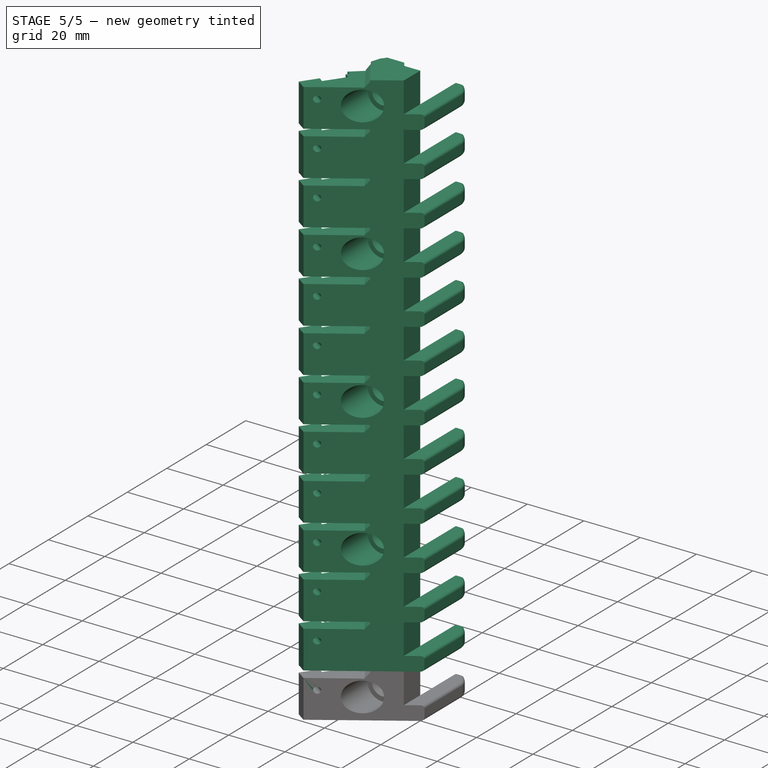
[diagram: stage 5 of 5 — iso view after this stage's code; geometry added in this stage tinted green]
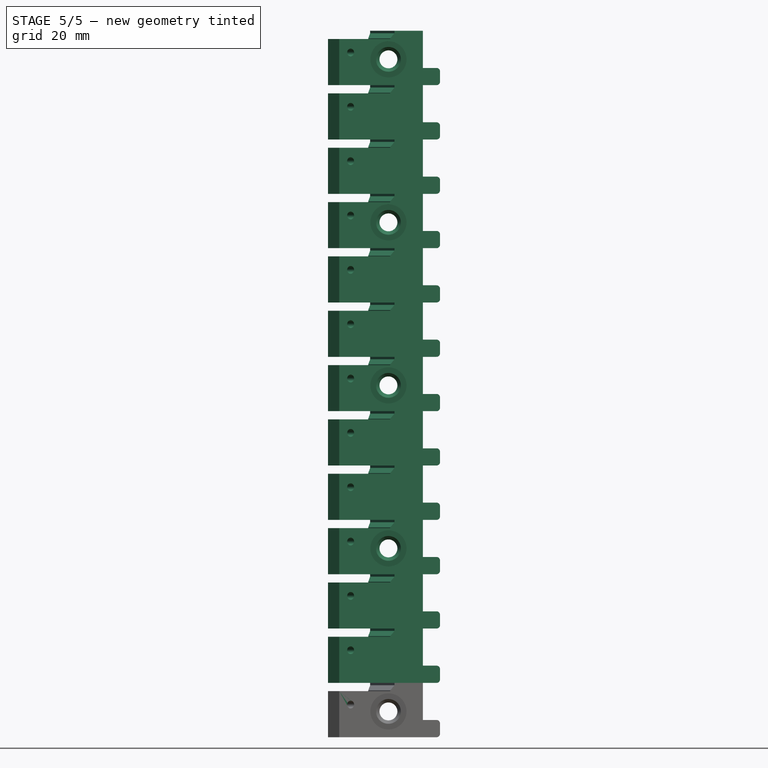
[diagram: stage 5 of 5 — front view after this stage's code; geometry added in this stage tinted green]
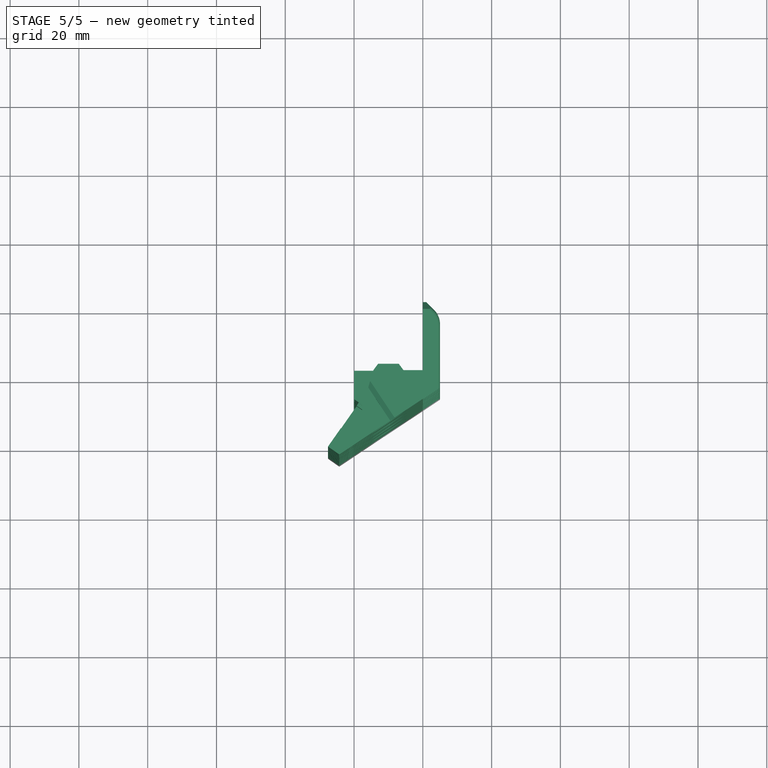
[diagram: stage 5 of 5 — top view after this stage's code; geometry added in this stage tinted green]
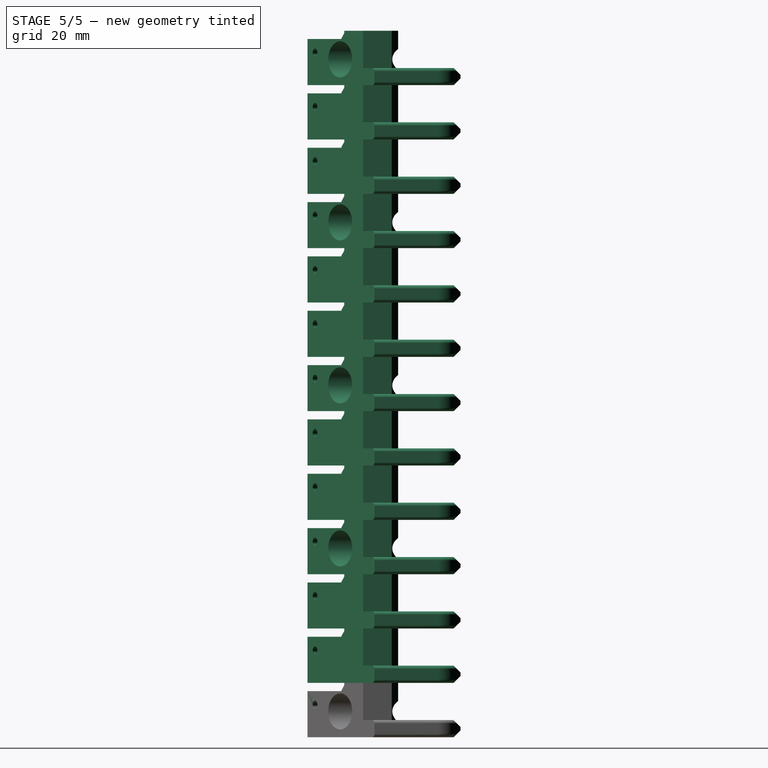
[diagram: stage 5 of 5 — right view after this stage's code; geometry added in this stage tinted green]
FEATURE [PartDesign::Pad] Pad011
  BaseFeature = -> Pad010
  Direction = (0.819152,-0.573576,-2e-16)
  Length = 1
  Length2 = 10
  Profile = -> Pad010 [Face27]
  Type = 0
FEATURE [Sketcher::SketchObject] Sketch023
  ExternalGeometry = -> [Pad011]
  FullyConstrained = false
  MapMode = 5
  Support = -> [XY_Plane]
  sketch-geometry (8):
    g0: LineSegment StartX=-7.0512 StartY=-29.0752 StartZ=0 EndX=-15.88 EndY=-18.8884 EndZ=0
    g1: LineSegment StartX=-15.88 StartY=-18.8884 StartZ=0 EndX=-24.3032 EndY=-24.4912 EndZ=0
    g2: LineSegment StartX=-24.3032 StartY=-24.4912 StartZ=0 EndX=-27.5798 EndY=-22.1969 EndZ=0
    g3: LineSegment StartX=-27.5798 StartY=-22.1969 StartZ=0 EndX=-28.8287 EndY=-14.5147 EndZ=0
    g4: LineSegment StartX=-28.8287 StartY=-14.5147 StartZ=0 EndX=-36.9097 EndY=-17.7968 EndZ=0
    g5: LineSegment StartX=-36.9097 StartY=-17.7968 StartZ=0 EndX=-47.3105 EndY=-35.0114 EndZ=0
    g6: LineSegment StartX=-47.3105 StartY=-35.0114 StartZ=0 EndX=-37.6591 EndY=-45.8169 EndZ=0
    g7: LineSegment StartX=-37.6591 StartY=-45.8169 StartZ=0 EndX=-7.0512 EndY=-29.0752 EndZ=0
  constraints (11):
    c: Coincident(g0,g-4)
    c: Coincident(g0,g1)
    c: Coincident(g1,g-4)
    c: Coincident(g1,g2)
    c: Coincident(g2,g-3)
    c: Coincident(g2,g3)
    c: Coincident(g3,g4)
    c: Coincident(g4,g5)
    c: Coincident(g5,g6)
    c: Coincident(g6,g7)
    c: Coincident(g7,g0)
FEATURE [PartDesign::Pocket] Pocket015
  BaseFeature = -> Pad011
  Direction = (0,0,-1)
  Length = 14
  Length2 = 5
  Profile = -> Sketch023
  ReferenceAxis = -> Sketch023 [N_Axis]
  Reversed = true
  Type = 0
FEATURE [PartDesign::LinearPattern] LinearPattern
  BaseFeature = -> Pocket015
  Direction = -> Z_Axis
  Length = 189.6
  Occurrences = 13
  Originals = -> [Pad,Pocket001,Pocket002,Pocket,Pad001,Pocket005,Pad002,Pocket006,Pocket007,Pocket008,Pocket009,Pocket010,Chamfer,Chamfer001,Fillet,Fillet001,Pad003,Pad004,Pocket011,Pad005,Pad006,Pocket012,Chamfer002,Pad007,Pocket013,Pad008,Chamfer003,Pad009,Pocket014,Chamfer004,Pad010,Pad011,Pocket015]
FEATURE [PartDesign::Pad] Pad012
  BaseFeature = -> LinearPattern
  Direction = (0,1,0)
  Length = 1.85
  Length2 = 10
  Profile = -> LinearPattern [Edge221]
  Type = 0
FEATURE [PartDesign::Pad] Pad013
  BaseFeature = -> Pad012
  Direction = (0,1,-3e-16)
  Length = 1.85
  Length2 = 10
  Profile = -> Pad012 [Edge692,Edge1067,Edge1265,Edge1702,Edge1946,Edge2434,Edge2678]
  Type = 0
FEATURE [PartDesign::Pocket] Pocket016
  BaseFeature = -> Pad013
  Direction = (4.25,0,1.4e-15)
  Length = 0
  Length2 = 5
  Profile = -> Pad013 [Face74,Face259,Face469,Face545,Face725,Face823,Face1019,Face1117]
  Type = 3
  UpToFace = -> Pad013 [Face1091]
FEATURE [PartDesign::Pocket] Pocket017
  BaseFeature = -> Pocket016
  Direction = (-3.92508,0,-1.6298)
  Length = 0
  Length2 = 5
  Profile = -> Pocket016 [Face1053,Face1054,Face956,Face957,Face759,Face760,Face662,Face663,Face496,Face497,Face409,Face410,Face265,Face266,Face124,Face125]
  Type = 3
  UpToFace = -> Pocket016 [Face390]
FEATURE [PartDesign::Pad] Pad014
  BaseFeature = -> Pocket017
  Direction = (0,-1,0)
  Length = 10
  Length2 = 10
  Profile = -> Pocket017 [Face161,Face97,Face60,Face98,Face96,Face59,Face306,Face280,Face244,Face178,Face281,Face240,Face433,Face466,Face488,Face462,Face487,Face515,Face540,Face573,Face605,Face627,Face604,Face572,Face740,Face775,Face774,Face806,Face807,Face829,Face927,Face873,Face839,Face872,Face904,Face905,Face1034,Face1069,Face1068,Face1100,+8 more]
  Refine = true
  Type = 3
  UpToFace = -> Pocket017 [Face512]
FEATURE [PartDesign::Body] Body
  Group = -> [Sketch,Pad,Sketch002,Pocket001,Sketch003,Pocket002,DatumPlane,Sketch004,Pocket,DatumPlane001,Sketch007,Pad001,DatumPlane002,Sketch008,Pocket005,Sketch009,Pad002,Pocket006,Sketch010,Pocket007,Chamfer,DatumPlane003,Sketch011,Chamfer001,Fillet,Pocket008,Sketch012,Pocket009,DatumPlane004,Sketch013,Pocket010,Fillet001,Pad003,Sketch014,Pad004,Sketch015,Pocket011,Sketch016,Pad005,Sketch017,Pad006,+24 more]
  Origin = -> Origin
  Tip = -> Pad014
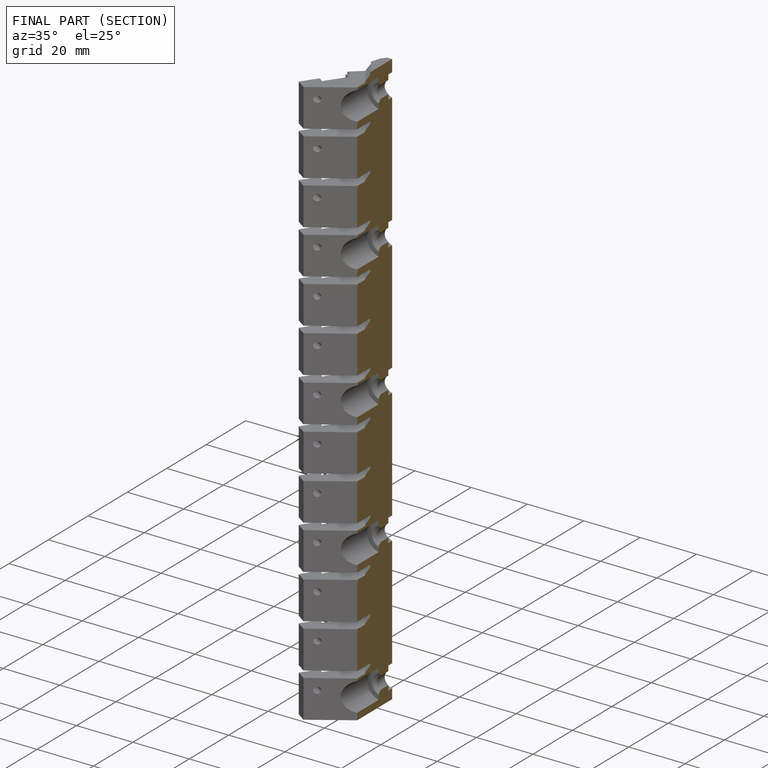
[diagram: finished part — half-section view (interior)]
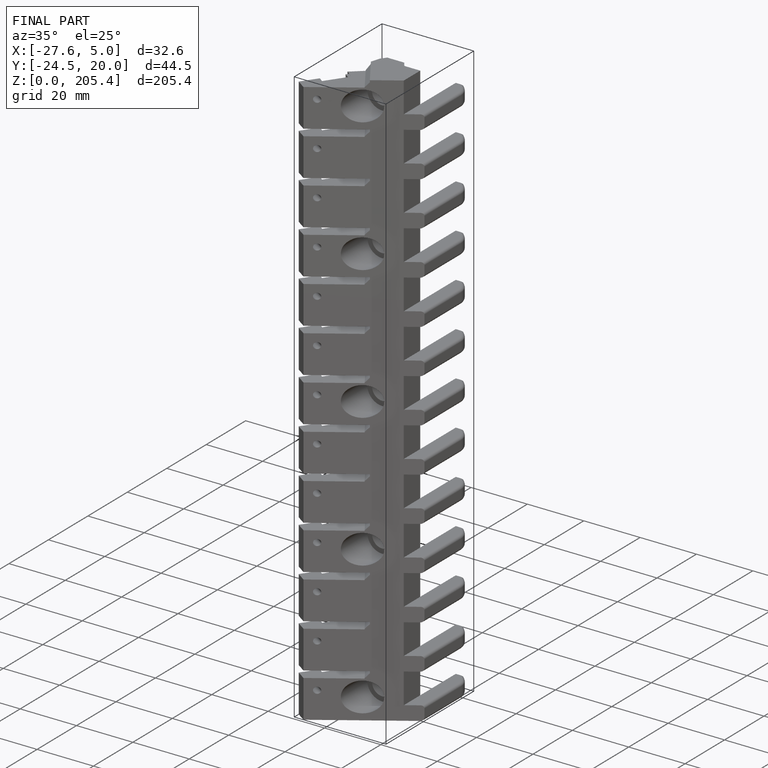
[diagram: finished part — iso view with bounding-box wireframe]
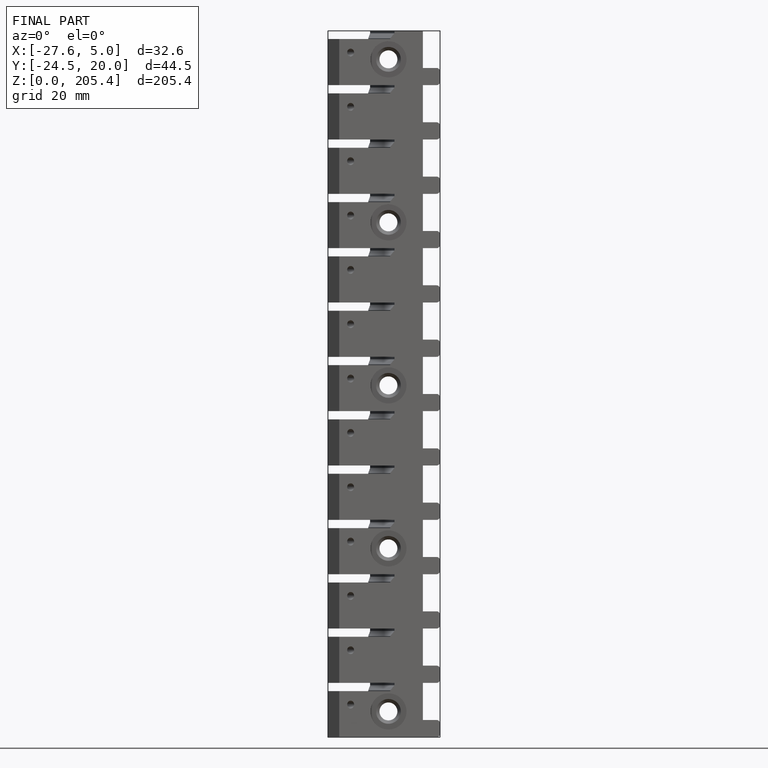
[diagram: finished part — front view with bounding-box wireframe]
